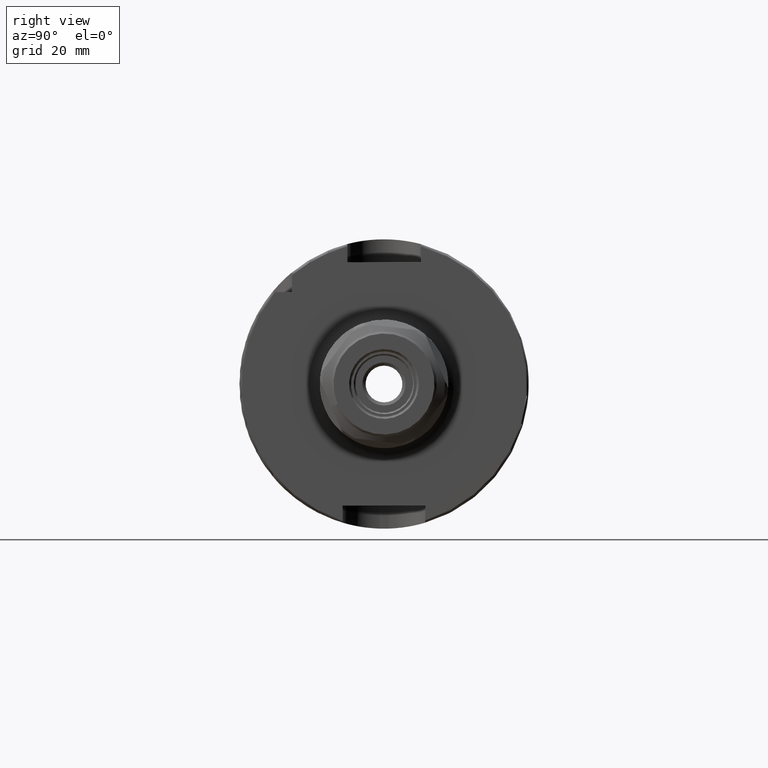
[diagram: clean part render]
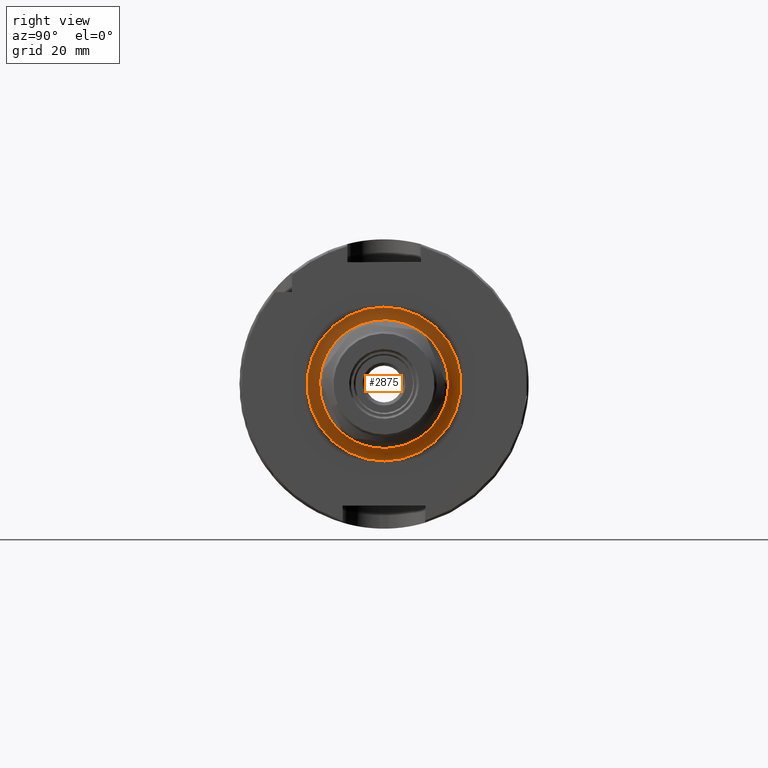
[diagram: same view with one face highlighted and labeled with its STEP entity id]
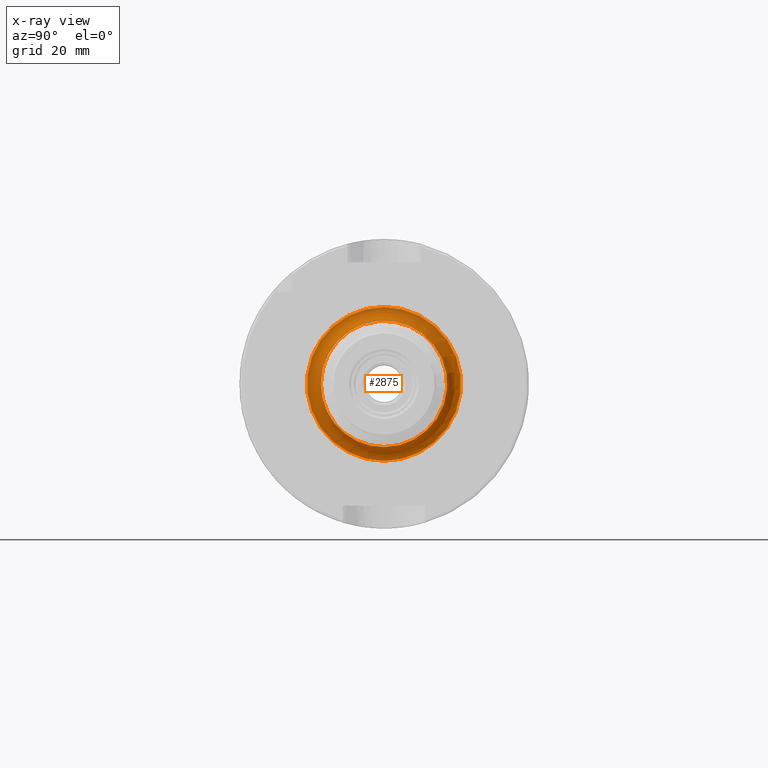
[diagram: x-ray of the same camera — body ghosted, the highlighted face saturated]
A machine part, right view. The second image highlights one B-rep face of the part: STEP entity #2875.
The next image is the same camera in x-ray: the body ghosted, the highlighted face saturated — about 9% of this face is hidden behind the body in this view.
In plain terms, the highlighted toroidal blend (fillet) surface has major radius 16.75 mm and minor (blend) radius 3 mm.
Its self-contained STEP definition (entity closure, byte-faithful):
#222=TOROIDAL_SURFACE('',#3141,16.75,3.);
#313=FACE_OUTER_BOUND('',#486,.T.);
#486=EDGE_LOOP('',(#1976,#1977,#1978,#1979,#1980));
#990=CIRCLE('',#3139,13.75);
#991=CIRCLE('',#3140,13.75);
#992=CIRCLE('',#3142,3.);
#993=CIRCLE('',#3143,16.75);
#1175=VERTEX_POINT('',#4458);
#1176=VERTEX_POINT('',#4460);
#1177=VERTEX_POINT('',#4464);
#1485=EDGE_CURVE('',#1176,#1175,#990,.T.);
#1486=EDGE_CURVE('',#1175,#1176,#991,.T.);
#1487=EDGE_CURVE('',#1176,#1177,#992,.T.);
#1488=EDGE_CURVE('',#1177,#1177,#993,.T.);
#1976=ORIENTED_EDGE('',*,*,#1486,.T.);
#1977=ORIENTED_EDGE('',*,*,#1487,.T.);
#1978=ORIENTED_EDGE('',*,*,#1488,.T.);
#1979=ORIENTED_EDGE('',*,*,#1487,.F.);
#1980=ORIENTED_EDGE('',*,*,#1485,.T.);
#2875=ADVANCED_FACE('',(#313),#222,.F.);
#3139=AXIS2_PLACEMENT_3D('',#4461,#3567,#3568);
#3140=AXIS2_PLACEMENT_3D('',#4462,#3569,#3570);
#3141=AXIS2_PLACEMENT_3D('',#4463,#3571,#3572);
#3142=AXIS2_PLACEMENT_3D('',#4465,#3573,#3574);
#3143=AXIS2_PLACEMENT_3D('',#4466,#3575,#3576);
#3567=DIRECTION('center_axis',(-1.,0.,0.));
#3568=DIRECTION('ref_axis',(0.,-1.,-1.22464679914735E-16));
#3569=DIRECTION('center_axis',(-1.,0.,0.));
#3570=DIRECTION('ref_axis',(0.,-1.,-1.22464679914735E-16));
#3571=DIRECTION('center_axis',(-1.,0.,0.));
#3572=DIRECTION('ref_axis',(0.,0.,1.));
#3573=DIRECTION('center_axis',(0.,-1.,1.22464679914735E-16));
#3574=DIRECTION('ref_axis',(0.,-1.22464679914735E-16,-1.));
#3575=DIRECTION('center_axis',(1.,0.,0.));
#3576=DIRECTION('ref_axis',(0.,-1.,-1.22464679914735E-16));
#4458=CARTESIAN_POINT('',(29.,-13.75,-1.68388934882761E-15));
#4460=CARTESIAN_POINT('',(29.,-1.68388934882761E-15,-13.75));
#4461=CARTESIAN_POINT('Origin',(29.,0.,0.));
#4462=CARTESIAN_POINT('Origin',(29.,0.,0.));
#4463=CARTESIAN_POINT('Origin',(29.,0.,0.));
#4464=CARTESIAN_POINT('',(26.,-2.05128338857182E-15,-16.75));
#4465=CARTESIAN_POINT('Origin',(29.,-2.05128338857182E-15,-16.75));
#4466=CARTESIAN_POINT('Origin',(26.,0.,0.));